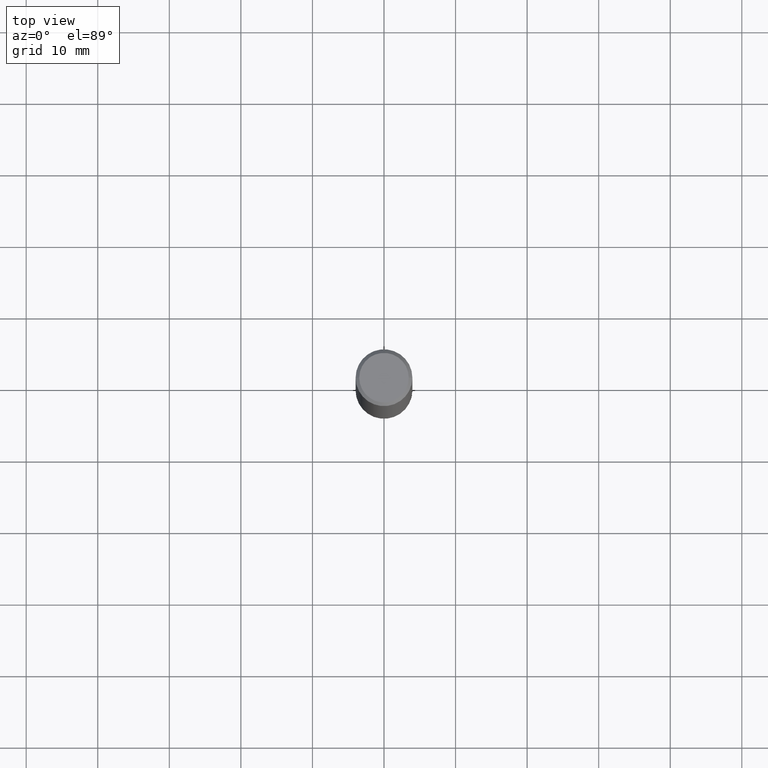
[diagram: clean part render]
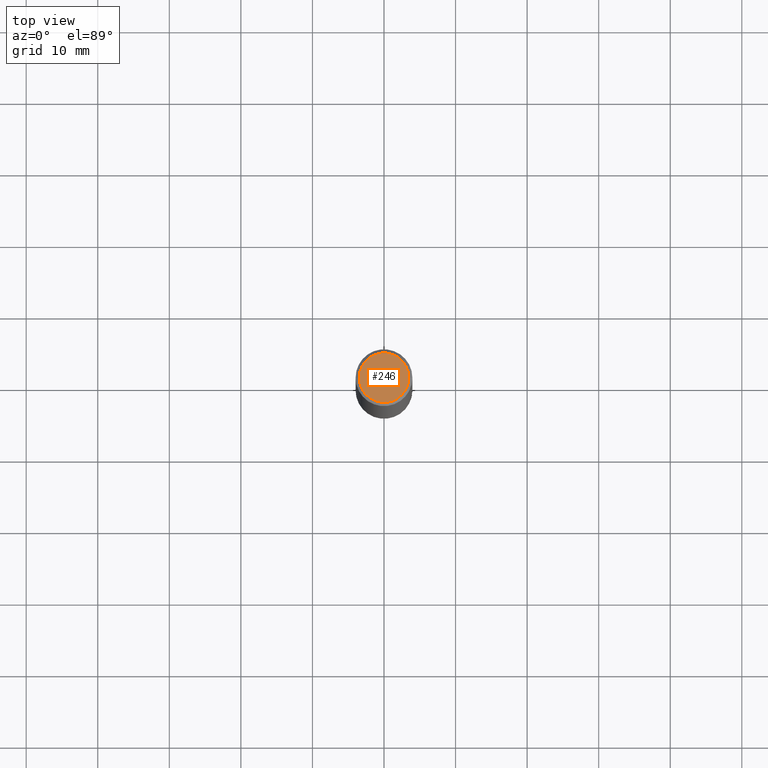
[diagram: same view with one face highlighted and labeled with its STEP entity id]
A machine part, top view. The second image highlights one B-rep face of the part: STEP entity #246.
In plain terms, the highlighted planar face has unit normal (0, -0, -1).
Its self-contained STEP definition (entity closure, byte-faithful):
#3 = CARTESIAN_POINT ( 'NONE',  ( -0.1362499999999995937, 9.863434782231822541E-16, -6.775751096333120265E-30 ) ) ;
#10 = EDGE_CURVE ( 'NONE', #197, #290, #268, .T. ) ;
#19 = EDGE_CURVE ( 'NONE', #290, #197, #30, .T. ) ;
#20 = EDGE_LOOP ( 'NONE', ( #182, #165 ) ) ;
#26 = CARTESIAN_POINT ( 'NONE',  ( 9.514286648347509994E-16, 0.1362499999999995937, -4.757143324173772746E-16 ) ) ;
#30 = CIRCLE ( 'NONE', #240, 0.1362499999999995937 ) ;
#41 = DIRECTION ( 'NONE',  ( 1.000000000000000000, -6.982962677686266711E-15, 4.876176775795935793E-29 ) ) ;
#94 = DIRECTION ( 'NONE',  ( 1.000000000000000000, -6.982962677686266711E-15, 4.876176775795935793E-29 ) ) ;
#96 = CARTESIAN_POINT ( 'NONE',  ( 0.000000000000000000, 0.000000000000000000, 0.000000000000000000 ) ) ;
#142 = AXIS2_PLACEMENT_3D ( 'NONE', #26, #301, #162 ) ;
#153 = AXIS2_PLACEMENT_3D ( 'NONE', #96, #323, #41 ) ;
#162 = DIRECTION ( 'NONE',  ( -1.000000000000000000, 6.982962677686265922E-15, -4.876176775795935793E-29 ) ) ;
#165 = ORIENTED_EDGE ( 'NONE', *, *, #10, .T. ) ;
#177 = DIRECTION ( 'NONE',  ( -2.445468806185136597E-29, 3.491481338843145583E-15, 1.000000000000000000 ) ) ;
#182 = ORIENTED_EDGE ( 'NONE', *, *, #19, .T. ) ;
#186 = PLANE ( 'NONE',  #142 ) ;
#197 = VERTEX_POINT ( 'NONE', #245 ) ;
#240 = AXIS2_PLACEMENT_3D ( 'NONE', #294, #177, #94 ) ;
#245 = CARTESIAN_POINT ( 'NONE',  ( 0.1362499999999995937, -1.038262645562515166E-15, 6.957025900226675457E-30 ) ) ;
#246 = ADVANCED_FACE ( 'NONE', ( #252 ), #186, .F. ) ;
#252 = FACE_OUTER_BOUND ( 'NONE', #20, .T. ) ;
#268 = CIRCLE ( 'NONE', #153, 0.1362499999999995937 ) ;
#290 = VERTEX_POINT ( 'NONE', #3 ) ;
#294 = CARTESIAN_POINT ( 'NONE',  ( 0.000000000000000000, 0.000000000000000000, 0.000000000000000000 ) ) ;
#301 = DIRECTION ( 'NONE',  ( 2.438088387897960049E-29, -3.491481338843145188E-15, -1.000000000000000000 ) ) ;
#323 = DIRECTION ( 'NONE',  ( -2.445468806185136597E-29, 3.491481338843145583E-15, 1.000000000000000000 ) ) ;